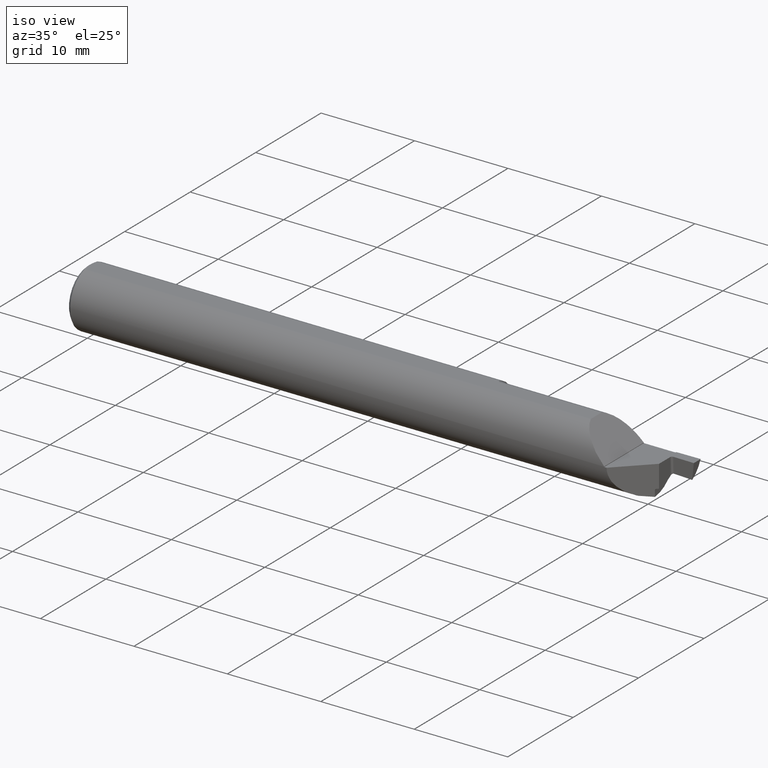
[diagram: clean part render]
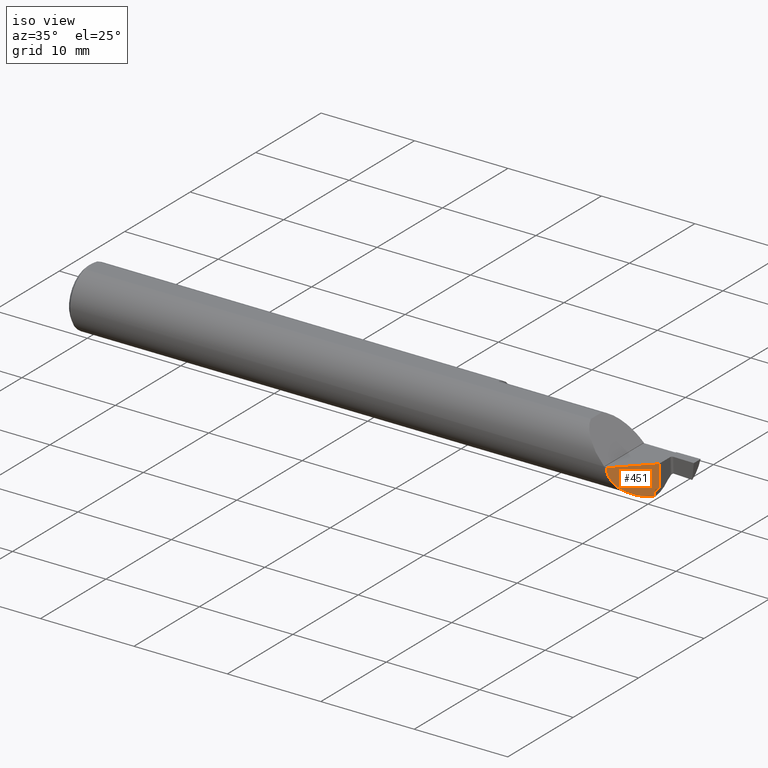
[diagram: same view with one face highlighted and labeled with its STEP entity id]
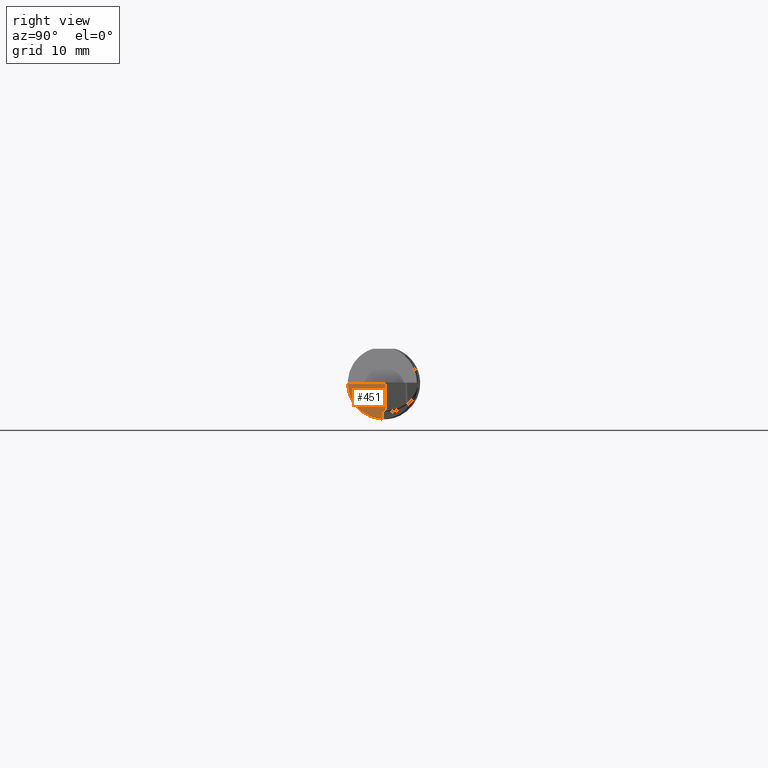
[diagram: same view with one face highlighted and labeled with its STEP entity id]
A machine part, iso view. The second image highlights one B-rep face of the part: STEP entity #451.
A second angle (right view) of the same face is appended — the face is thin or edge-on in the first view.
In plain terms, the highlighted planar face has unit normal (-0.7071, 0.7071, 0).
Its self-contained STEP definition (entity closure, byte-faithful):
#22 = CARTESIAN_POINT ( 'NONE',  ( 2.394751877648227723, -0.005098122351772174828, -0.09959555190881562436 ) ) ;
#24 = ORIENTED_EDGE ( 'NONE', *, *, #616, .T. ) ;
#26 = CARTESIAN_POINT ( 'NONE',  ( 2.405000000000000249, 0.005149999999999994860, 0.000000000000000000 ) ) ;
#29 = CARTESIAN_POINT ( 'NONE',  ( 2.395537994298262863, -0.004312005701737785766, -0.09665352178019671892 ) ) ;
#49 = EDGE_CURVE ( 'NONE', #481, #412, #847, .T. ) ;
#55 = ORIENTED_EDGE ( 'NONE', *, *, #59, .F. ) ;
#59 = EDGE_CURVE ( 'NONE', #83, #564, #732, .T. ) ;
#67 = CARTESIAN_POINT ( 'NONE',  ( 2.405000000000000249, 0.005149999999999994860, -0.09499978237659115199 ) ) ;
#83 = VERTEX_POINT ( 'NONE', #22 ) ;
#98 = CARTESIAN_POINT ( 'NONE',  ( 2.274999999999999467, -0.1248500000000000026, 0.000000000000000000 ) ) ;
#108 = EDGE_CURVE ( 'NONE', #564, #412, #287, .T. ) ;
#135 = ORIENTED_EDGE ( 'NONE', *, *, #559, .T. ) ;
#137 = CARTESIAN_POINT ( 'NONE',  ( 2.401443567172405924, 0.001593567172405820249, -0.09496677274281281611 ) ) ;
#152 = VECTOR ( 'NONE', #728, 39.37007874015748143 ) ;
#179 = DIRECTION ( 'NONE',  ( -0.7071067811865461294, 0.7071067811865490160, 0.000000000000000000 ) ) ;
#239 = CARTESIAN_POINT ( 'NONE',  ( 2.394751877648227723, -0.005098122351772174828, -0.1247458682621847836 ) ) ;
#247 = PLANE ( 'NONE',  #443 ) ;
#249 = DIRECTION ( 'NONE',  ( -0.7071067811865489050, -0.7071067811865460184, 0.000000000000000000 ) ) ;
#281 = ORIENTED_EDGE ( 'NONE', *, *, #49, .T. ) ;
#287 =( BOUNDED_CURVE ( )  B_SPLINE_CURVE ( 3, ( #239, #441, #525, #98 ),
 .UNSPECIFIED., .F., .F. ) 
 B_SPLINE_CURVE_WITH_KNOTS ( ( 4, 4 ),
 ( 4.753234316354996380, 6.283185307179586232 ),
 .UNSPECIFIED. ) 
 CURVE ( )  GEOMETRIC_REPRESENTATION_ITEM ( )  RATIONAL_B_SPLINE_CURVE ( ( 1.000000000000000000, 0.8142662183690925204, 0.8142662183690925204, 1.000000000000000000 ) ) 
 REPRESENTATION_ITEM ( '' )  );
#304 = CARTESIAN_POINT ( 'NONE',  ( 2.397454914098147150, -0.002395085901852431198, -0.09513542504145189316 ) ) ;
#306 = CARTESIAN_POINT ( 'NONE',  ( 2.399666848159061061, -0.0001831518409391941975, -0.09489057570781525563 ) ) ;
#343 = VECTOR ( 'NONE', #869, 39.37007874015748143 ) ;
#372 = CARTESIAN_POINT ( 'NONE',  ( 2.398564255683880653, -0.001285744316120225605, -0.09484328951523871010 ) ) ;
#379 = ORIENTED_EDGE ( 'NONE', *, *, #883, .T. ) ;
#380 = CARTESIAN_POINT ( 'NONE',  ( 2.274999999999999467, -0.1248500000000000026, 0.000000000000000000 ) ) ;
#411 = CARTESIAN_POINT ( 'NONE',  ( 2.403221592166109311, 0.003371592166108982984, -0.09500318126676898789 ) ) ;
#412 = VERTEX_POINT ( 'NONE', #380 ) ;
#428 = VECTOR ( 'NONE', #249, 39.37007874015748854 ) ;
#429 = ORIENTED_EDGE ( 'NONE', *, *, #108, .F. ) ;
#441 = CARTESIAN_POINT ( 'NONE',  ( 2.324022410176072473, -0.07582758982392719116, -0.1218552917318994899 ) ) ;
#443 = AXIS2_PLACEMENT_3D ( 'NONE', #793, #179, #784 ) ;
#451 = ADVANCED_FACE ( 'NONE', ( #840 ), #247, .F. ) ;
#466 = CARTESIAN_POINT ( 'NONE',  ( 2.394751877648227723, -0.005098122351772174828, -0.09959555190881562436 ) ) ;
#481 = VERTEX_POINT ( 'NONE', #26 ) ;
#497 = VERTEX_POINT ( 'NONE', #855 ) ;
#503 = VERTEX_POINT ( 'NONE', #306 ) ;
#517 =( BOUNDED_CURVE ( )  B_SPLINE_CURVE ( 3, ( #754, #137, #411, #67 ),
 .UNSPECIFIED., .F., .T. ) 
 B_SPLINE_CURVE_WITH_KNOTS ( ( 4, 4 ),
 ( 1.527169121532594653, 1.572741771764518903 ),
 .UNSPECIFIED. ) 
 CURVE ( )  GEOMETRIC_REPRESENTATION_ITEM ( )  RATIONAL_B_SPLINE_CURVE ( ( 1.000000000000000000, 0.9998269352842705793, 0.9998269352842705793, 1.000000000000000000 ) ) 
 REPRESENTATION_ITEM ( '' )  );
#525 = CARTESIAN_POINT ( 'NONE',  ( 2.274999999999999467, -0.1248500000000000026, -0.07078850896559471528 ) ) ;
#532 = CARTESIAN_POINT ( 'NONE',  ( 2.394751877648227723, -0.005098122351772174828, 0.02000000000000000736 ) ) ;
#559 = EDGE_CURVE ( 'NONE', #497, #481, #738, .T. ) ;
#564 = VERTEX_POINT ( 'NONE', #801 ) ;
#582 = CARTESIAN_POINT ( 'NONE',  ( 2.394751877648227723, -0.005098122351772173960, -0.09802177949398997725 ) ) ;
#605 = CARTESIAN_POINT ( 'NONE',  ( 2.405000000000000249, 0.005149999999999994860, -0.1248500000000000026 ) ) ;
#616 = EDGE_CURVE ( 'NONE', #83, #503, #741, .T. ) ;
#670 = EDGE_LOOP ( 'NONE', ( #55, #24, #379, #135, #281, #429 ) ) ;
#728 = DIRECTION ( 'NONE',  ( 0.000000000000000000, 0.000000000000000000, -1.000000000000000000 ) ) ;
#732 = LINE ( 'NONE', #532, #152 ) ;
#738 = LINE ( 'NONE', #605, #343 ) ;
#741 = B_SPLINE_CURVE_WITH_KNOTS ( 'NONE', 3,
 ( #466, #582, #29, #304, #372, #795 ),
 .UNSPECIFIED., .F., .F.,
 ( 4, 2, 4 ),
 ( 0.000000000000000000, 0.0001179800840654971226, 0.0002359601681309942453 ),
 .UNSPECIFIED. ) ;
#754 = CARTESIAN_POINT ( 'NONE',  ( 2.399666848159061061, -0.0001831518409391941975, -0.09489057570781525563 ) ) ;
#784 = DIRECTION ( 'NONE',  ( -0.7071067811865489050, -0.7071067811865460184, 0.000000000000000000 ) ) ;
#793 = CARTESIAN_POINT ( 'NONE',  ( 2.405000000000000249, 0.005149999999999994860, -0.1248500000000000026 ) ) ;
#794 = CARTESIAN_POINT ( 'NONE',  ( 2.405000000000000249, 0.005149999999999994860, 0.000000000000000000 ) ) ;
#795 = CARTESIAN_POINT ( 'NONE',  ( 2.399666848159061061, -0.0001831518409391941975, -0.09489057570781525563 ) ) ;
#801 = CARTESIAN_POINT ( 'NONE',  ( 2.394751877648227723, -0.005098122351772174828, -0.1247458682621847836 ) ) ;
#840 = FACE_OUTER_BOUND ( 'NONE', #670, .T. ) ;
#847 = LINE ( 'NONE', #794, #428 ) ;
#855 = CARTESIAN_POINT ( 'NONE',  ( 2.405000000000000249, 0.005149999999999994860, -0.09499978237659115199 ) ) ;
#869 = DIRECTION ( 'NONE',  ( -0.000000000000000000, -0.000000000000000000, 1.000000000000000000 ) ) ;
#883 = EDGE_CURVE ( 'NONE', #503, #497, #517, .T. ) ;